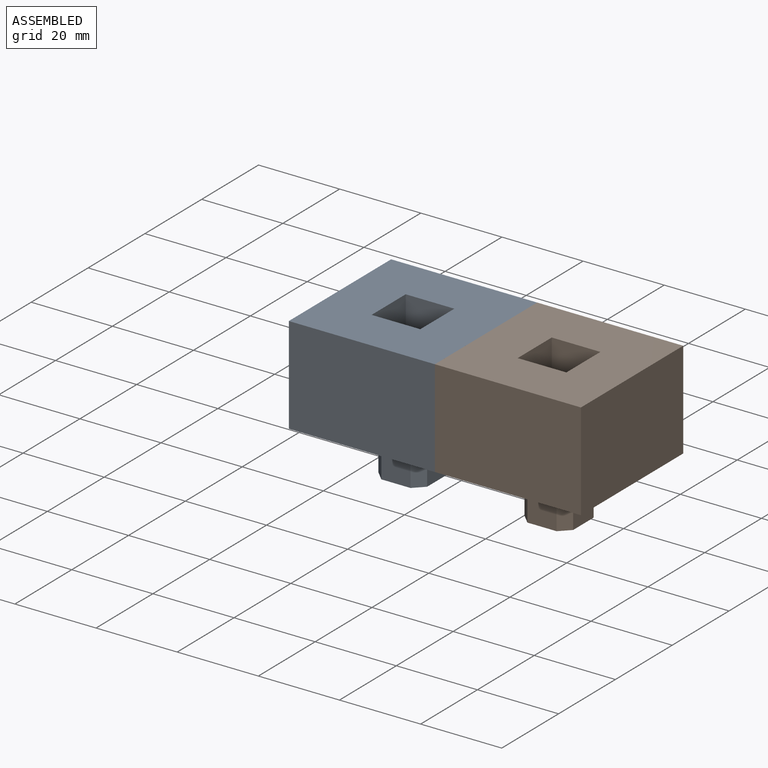
[diagram: assembled view]
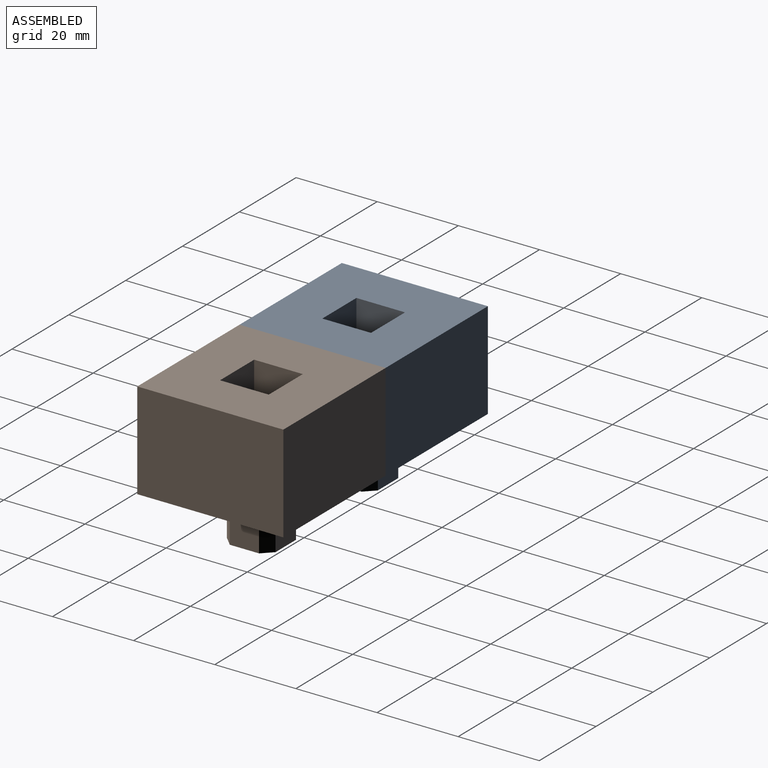
[diagram: assembled view, second angle]
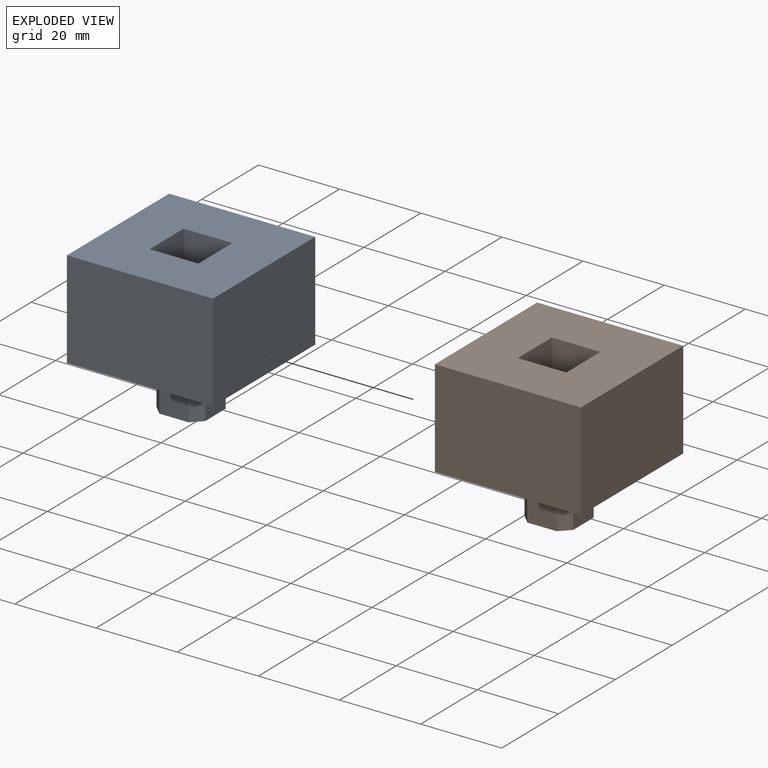
[diagram: exploded view]
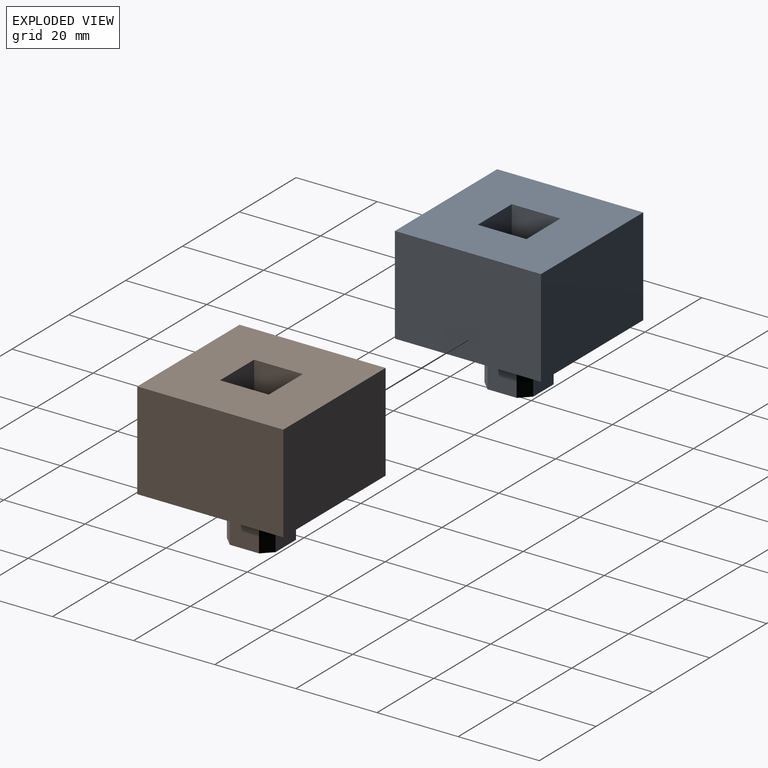
[diagram: exploded view, second angle]
ASSEMBLY  parts=2 mates=2
PART A: 20 faces, bbox 36x36x36 mm
  f0: plane 36x36mm, normal (0,0,1), area 1152mm2, adj f1,f2,f3,f4,f6,f7,f8,f9
  f1: plane 36x24mm, normal (-1,0,0), area 864mm2, adj f0,f2,f4,f5
  f2: plane 36x24mm, normal (0,-1,0), area 864mm2, adj f0,f1,f3,f5
  f3: plane 36x24mm, normal (1,0,0), area 864mm2, adj f0,f2,f4,f5
  f4: plane 36x24mm, normal (0,1,0), area 864mm2, adj f0,f1,f3,f5
  f5: plane 36x36mm, normal (0,0,-1), area 1163.5mm2, adj f1,f2,f3,f4,f11,f12,f13,f14
  f6: plane 12x12mm, normal (0,-1,0), area 144mm2, adj f0,f7,f9,f10
  f7: plane 12x12mm, normal (1,0,0), area 144mm2, adj f0,f6,f8,f10
  f8: plane 12x12mm, normal (0,1,0), area 144mm2, adj f0,f7,f9,f10
  f9: plane 12x12mm, normal (-1,0,0), area 144mm2, adj f0,f6,f8,f10
  f10: plane 12x12mm, normal (0,0,1), area 144mm2, adj f6,f7,f8,f9
  f11: plane 12x7.2mm, normal (0,-1,0), area 86.4mm2, adj f5,f15,f17,f18
  f12: plane 12x7.2mm, normal (-1,0,0), area 86.4mm2, adj f5,f15,f16,f17
  f13: plane 12x7.2mm, normal (0,1,0), area 86.4mm2, adj f5,f15,f16,f19
  f14: plane 12x7.2mm, normal (1,0,0), area 86.4mm2, adj f5,f15,f18,f19
  f15: plane 12x12mm, normal (0,0,-1), area 132.5mm2, adj f11,f12,f13,f14,f16,f17,f18,f19
  f16: plane 12x2.4mm, normal (-0.71,0.71,0), area 40.7mm2, adj f5,f12,f13,f15
  f17: plane 12x2.4mm, normal (-0.71,-0.71,0), area 40.7mm2, adj f5,f11,f12,f15
  f18: plane 12x2.4mm, normal (0.71,-0.71,0), area 40.7mm2, adj f5,f11,f14,f15
  f19: plane 12x2.4mm, normal (0.71,0.71,0), area 40.7mm2, adj f5,f13,f14,f15
PART B: same geometry as A
PLACE A t=(-6.31,-3.11,2.14)mm fixed
PLACE B t=(29.69,-3.11,2.14)mm
MATE planar A.f3 <-> B.f1  axis (1,0,0) through (29.69,14.89,14.14)mm
MATE parallel B.f1 <-> A.f3  axis (-1,0,0) through (29.69,14.89,14.14)mm
